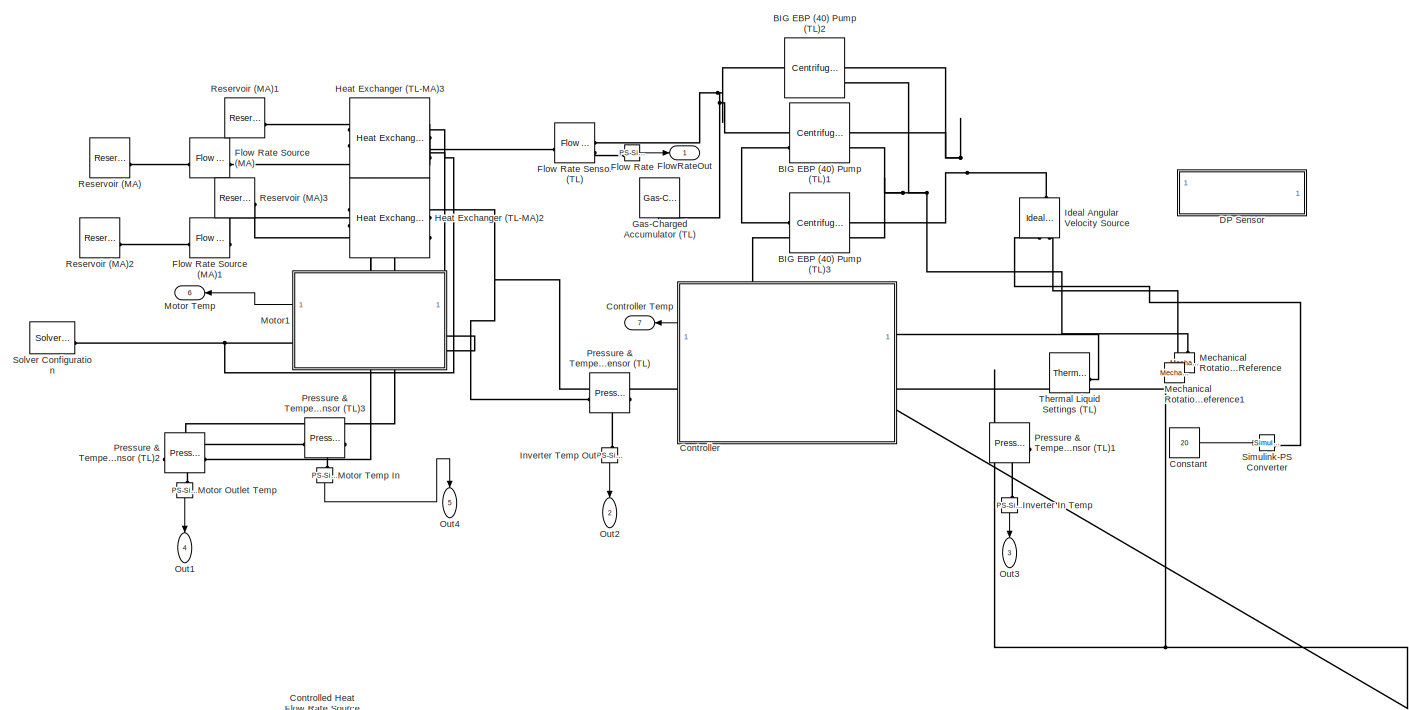
[diagram: root canvas - part 1/3, full width, middle band]
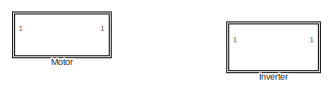
[diagram: root canvas - part 2/3, middle left region]
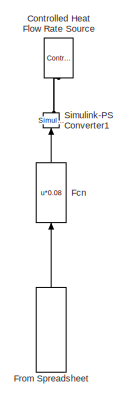
[diagram: root canvas - part 3/3, bottom center region]
MODEL slx_bb8e99e7fb2f
KIND model
CONFIG AbsTol = auto
CONFIG EnableMultiTasking = off
CONFIG FixedStep = auto
CONFIG MaxStep = auto
CONFIG MinStep = auto
CONFIG RelTol = 1e-3
CONFIG SampleTimeConstraint = Unconstrained
CONFIG SolverName = VariableStepAuto
CONFIG StartTime = 0.0
CONFIG StopTime = 2000
BLOCK [Reference] BIG EBP (40) Pump (TL)1  REF=SimscapeFluids_lib/Thermal Liquid/Pumps & Motors/Centrifugal Pump
(TL)
  SourceBlock = SimscapeFluids_lib/Thermal Liquid/Pumps & Motors/Centrifugal Pump\n(TL)
  SourceType = Centrifugal Pump\n(TL)
BLOCK [Reference] BIG EBP (40) Pump (TL)2  REF=SimscapeFluids_lib/Thermal Liquid/Pumps & Motors/Centrifugal Pump
(TL)
  Commented = on
  NameLocation = top
  SourceBlock = SimscapeFluids_lib/Thermal Liquid/Pumps & Motors/Centrifugal Pump\n(TL)
  SourceType = Centrifugal Pump\n(TL)
BLOCK [Reference] BIG EBP (40) Pump (TL)3  REF=SimscapeFluids_lib/Thermal Liquid/Pumps & Motors/Centrifugal Pump
(TL)
  SourceBlock = SimscapeFluids_lib/Thermal Liquid/Pumps & Motors/Centrifugal Pump\n(TL)
  SourceType = Centrifugal Pump\n(TL)
BLOCK [Constant] Constant
  Value = 20
BLOCK [Reference] Controlled Heat Flow Rate Source  REF=fl_lib/Thermal/Thermal Sources/Controlled Heat Flow
Rate Source
  Commented = on
  NameLocation = right
  SourceBlock = fl_lib/Thermal/Thermal Sources/Controlled Heat Flow\nRate Source
  SourceType = Controlled Heat Flow\nRate Source
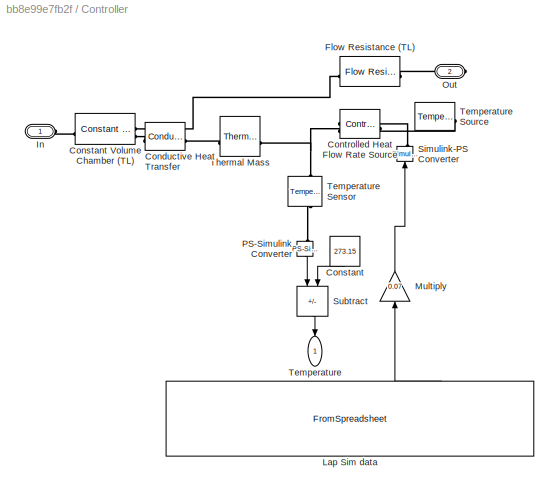
BLOCK [SubSystem] Controller
BLOCK [Outport] Controller Temp
  Port = 7
BLOCK [Reference] Controller/Conductive Heat Transfer  REF=fl_lib/Thermal/Thermal Elements/Conductive Heat
Transfer
  SourceBlock = fl_lib/Thermal/Thermal Elements/Conductive Heat\nTransfer
  SourceType = Conductive Heat\nTransfer
BLOCK [Constant] Controller/Constant
  NameLocation = left
  Value = 273.15
BLOCK [Reference] Controller/Constant Volume Chamber (TL)  REF=fl_lib/Thermal Liquid/Elements/Constant Volume
Chamber (TL)
  SourceBlock = fl_lib/Thermal Liquid/Elements/Constant Volume\nChamber (TL)
  SourceType = Constant Volume\nChamber (TL)
BLOCK [Reference] Controller/Controlled Heat Flow Rate Source  REF=fl_lib/Thermal/Thermal Sources/Controlled Heat Flow
Rate Source
  NameLocation = top
  SourceBlock = fl_lib/Thermal/Thermal Sources/Controlled Heat Flow\nRate Source
  SourceType = Controlled Heat Flow\nRate Source
BLOCK [Reference] Controller/Flow Resistance (TL)  REF=fl_lib/Thermal Liquid/Elements/Flow Resistance (TL)
  SourceBlock = fl_lib/Thermal Liquid/Elements/Flow Resistance (TL)
  SourceType = Flow Resistance (TL)
BLOCK [PMIOPort] Controller/In
  Side = Left
BLOCK [FromSpreadsheet] Controller/Lap Sim data
  FileName = LapTime_Power_new__10.xlsx
  NameLocation = right
  SampleTime = 0.1
  SheetName = LapTime_Power_new__10
BLOCK [Gain] Controller/Multiply
  Gain = 0.07
  NameLocation = right
BLOCK [PMIOPort] Controller/Out
  Port = 2
  Side = Right
BLOCK [Reference] Controller/PS-Simulink Converter  REF=nesl_utility/PS-Simulink
Converter
  NameLocation = left
  SourceBlock = nesl_utility/PS-Simulink\nConverter
  SourceType = PS-Simulink\nConverter
BLOCK [Reference] Controller/Simulink-PS Converter  REF=nesl_utility/Simulink-PS
Converter
  NameLocation = right
  SourceBlock = nesl_utility/Simulink-PS\nConverter
  SourceType = Simulink-PS\nConverter
BLOCK [Sum] Controller/Subtract
  IconShape = rectangular
  Inputs = +-
  NameLocation = left
BLOCK [Outport] Controller/Temperature
  NameLocation = left
BLOCK [Reference] Controller/Temperature Sensor  REF=fl_lib/Thermal/Thermal Sensors/Temperature Sensor
  NameLocation = left
  SourceBlock = fl_lib/Thermal/Thermal Sensors/Temperature Sensor
  SourceType = Temperature Sensor
BLOCK [Reference] Controller/Temperature Source  REF=fl_lib/Thermal/Thermal Sources/Temperature Source
  NameLocation = top
  SourceBlock = fl_lib/Thermal/Thermal Sources/Temperature Source
  SourceType = Temperature Source
BLOCK [Reference] Controller/Thermal Mass  REF=fl_lib/Thermal/Thermal Elements/Thermal Mass
  SourceBlock = fl_lib/Thermal/Thermal Elements/Thermal Mass
  SourceType = Thermal Mass
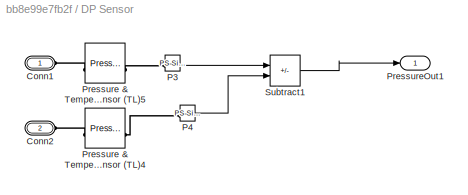
BLOCK [SubSystem] DP Sensor
  Commented = on
BLOCK [PMIOPort] DP Sensor/Conn1
  Side = Left
BLOCK [PMIOPort] DP Sensor/Conn2
  Port = 2
  Side = Left
BLOCK [Reference] DP Sensor/P3  REF=nesl_utility/PS-Simulink
Converter
  SourceBlock = nesl_utility/PS-Simulink\nConverter
  SourceType = PS-Simulink\nConverter
BLOCK [Reference] DP Sensor/P4  REF=nesl_utility/PS-Simulink
Converter
  SourceBlock = nesl_utility/PS-Simulink\nConverter
  SourceType = PS-Simulink\nConverter
BLOCK [Reference] DP Sensor/Pressure & Temperature Sensor (TL)4  REF=fl_lib/Thermal Liquid/Sensors/Pressure &
Temperature Sensor
(TL)
  SourceBlock = fl_lib/Thermal Liquid/Sensors/Pressure &\nTemperature Sensor\n(TL)
  SourceType = Pressure &\nTemperature Sensor\n(TL)
BLOCK [Reference] DP Sensor/Pressure & Temperature Sensor (TL)5  REF=fl_lib/Thermal Liquid/Sensors/Pressure &
Temperature Sensor
(TL)
  SourceBlock = fl_lib/Thermal Liquid/Sensors/Pressure &\nTemperature Sensor\n(TL)
  SourceType = Pressure &\nTemperature Sensor\n(TL)
BLOCK [Outport] DP Sensor/PressureOut1
BLOCK [Sum] DP Sensor/Subtract1
  IconShape = rectangular
  Inputs = -+
BLOCK [Fcn] Fcn
  Commented = on
  Expr = u*0.08
  NameLocation = right
BLOCK [Reference] Flow Rate  REF=nesl_utility/PS-Simulink
Converter
  SourceBlock = nesl_utility/PS-Simulink\nConverter
  SourceType = PS-Simulink\nConverter
BLOCK [Reference] Flow Rate Sensor (TL)  REF=fl_lib/Thermal Liquid/Sensors/Flow Rate Sensor
(TL)
  SourceBlock = fl_lib/Thermal Liquid/Sensors/Flow Rate Sensor\n(TL)
  SourceType = Flow Rate Sensor\n(TL)
BLOCK [Reference] Flow Rate Source (MA)  REF=fl_lib/Moist Air/Sources/Flow Rate Source
(MA)
  SourceBlock = fl_lib/Moist Air/Sources/Flow Rate Source\n(MA)
  SourceType = Flow Rate Source\n(MA)
BLOCK [Reference] Flow Rate Source (MA)1  REF=fl_lib/Moist Air/Sources/Flow Rate Source
(MA)
  SourceBlock = fl_lib/Moist Air/Sources/Flow Rate Source\n(MA)
  SourceType = Flow Rate Source\n(MA)
BLOCK [Outport] FlowRateOut
BLOCK [FromSpreadsheet] From Spreadsheet
  Commented = on
  FileName = LapTime_Power_old.xlsx
  NameLocation = right
  SampleTime = 0.1
BLOCK [Reference] Gas-Charged Accumulator (TL)  REF=SimscapeFluids_lib/Thermal Liquid/Tanks & Accumulators/Gas-Charged
Accumulator (TL)
  NameLocation = right
  SourceBlock = SimscapeFluids_lib/Thermal Liquid/Tanks & Accumulators/Gas-Charged\nAccumulator (TL)
  SourceType = Gas-Charged\nAccumulator (TL)
BLOCK [Reference] Heat Exchanger (TL-MA)2  REF=SimscapeFluids_lib/Heat Exchangers/Thermal Liquid -
Moist Air/Heat Exchanger
(TL-MA)
  NameLocation = top
  SourceBlock = SimscapeFluids_lib/Heat Exchangers/Thermal Liquid -\nMoist Air/Heat Exchanger\n(TL-MA)
  SourceType = Heat Exchanger\n(TL-MA)
BLOCK [Reference] Heat Exchanger (TL-MA)3  REF=SimscapeFluids_lib/Heat Exchangers/Thermal Liquid -
Moist Air/Heat Exchanger
(TL-MA)
  NameLocation = top
  SourceBlock = SimscapeFluids_lib/Heat Exchangers/Thermal Liquid -\nMoist Air/Heat Exchanger\n(TL-MA)
  SourceType = Heat Exchanger\n(TL-MA)
BLOCK [Reference] Ideal Angular Velocity Source  REF=fl_lib/Mechanical/Mechanical Sources/Ideal Angular
Velocity Source
  NameLocation = right
  SourceBlock = fl_lib/Mechanical/Mechanical Sources/Ideal Angular\nVelocity Source
  SourceType = Ideal Angular\nVelocity Source
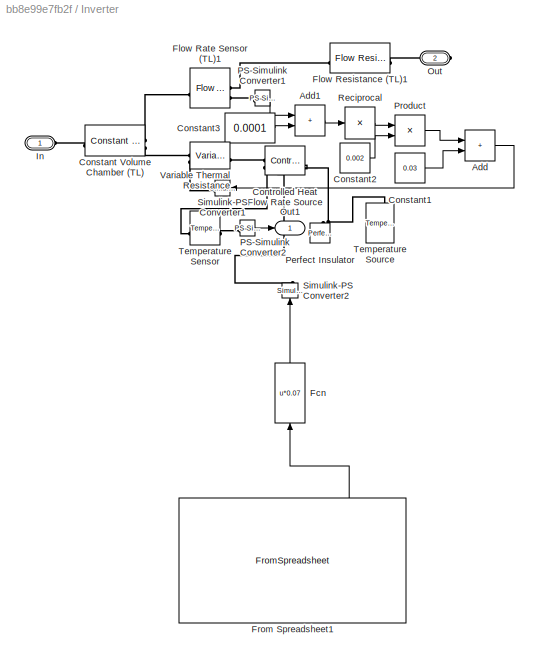
BLOCK [SubSystem] Inverter
  Commented = on
  NameLocation = top
BLOCK [Reference] Inverter In Temp  REF=nesl_utility/PS-Simulink
Converter
  NameLocation = left
  SourceBlock = nesl_utility/PS-Simulink\nConverter
  SourceType = PS-Simulink\nConverter
BLOCK [Reference] Inverter Temp Out  REF=nesl_utility/PS-Simulink
Converter
  NameLocation = left
  SourceBlock = nesl_utility/PS-Simulink\nConverter
  SourceType = PS-Simulink\nConverter
BLOCK [Sum] Inverter/Add
  IconShape = rectangular
BLOCK [Sum] Inverter/Add1
  IconShape = rectangular
BLOCK [Reference] Inverter/Constant Volume Chamber (TL)  REF=fl_lib/Thermal Liquid/Elements/Constant Volume
Chamber (TL)
  SourceBlock = fl_lib/Thermal Liquid/Elements/Constant Volume\nChamber (TL)
  SourceType = Constant Volume\nChamber (TL)
BLOCK [Constant] Inverter/Constant1
  Value = 0.03
BLOCK [Constant] Inverter/Constant2
  Value = 0.002
BLOCK [Constant] Inverter/Constant3
  Value = 0.0001
BLOCK [Reference] Inverter/Controlled Heat Flow Rate Source  REF=fl_lib/Thermal/Thermal Sources/Controlled Heat Flow
Rate Source
  NameLocation = top
  SourceBlock = fl_lib/Thermal/Thermal Sources/Controlled Heat Flow\nRate Source
  SourceType = Controlled Heat Flow\nRate Source
BLOCK [Fcn] Inverter/Fcn
  Expr = u*0.07
  NameLocation = right
BLOCK [Reference] Inverter/Flow Rate Sensor (TL)1  REF=fl_lib/Thermal Liquid/Sensors/Flow Rate Sensor
(TL)
  SourceBlock = fl_lib/Thermal Liquid/Sensors/Flow Rate Sensor\n(TL)
  SourceType = Flow Rate Sensor\n(TL)
BLOCK [Reference] Inverter/Flow Resistance (TL)1  REF=fl_lib/Thermal Liquid/Elements/Flow Resistance (TL)
  SourceBlock = fl_lib/Thermal Liquid/Elements/Flow Resistance (TL)
  SourceType = Flow Resistance (TL)
BLOCK [FromSpreadsheet] Inverter/From Spreadsheet1
  FileName = <path>
  NameLocation = right
  SampleTime = 0.1
  SheetName = LapTime_Power_new__10
BLOCK [PMIOPort] Inverter/In
  Side = Left
BLOCK [PMIOPort] Inverter/Out
  Port = 2
  Side = Right
BLOCK [Outport] Inverter/Out1
BLOCK [Reference] Inverter/PS-Simulink Converter1  REF=nesl_utility/PS-Simulink
Converter
  SourceBlock = nesl_utility/PS-Simulink\nConverter
  SourceType = PS-Simulink\nConverter
BLOCK [Reference] Inverter/PS-Simulink Converter2  REF=nesl_utility/PS-Simulink
Converter
  SourceBlock = nesl_utility/PS-Simulink\nConverter
  SourceType = PS-Simulink\nConverter
BLOCK [Reference] Inverter/Perfect Insulator  REF=fl_lib/Thermal/Thermal Elements/Perfect Insulator
  NameLocation = right
  SourceBlock = fl_lib/Thermal/Thermal Elements/Perfect Insulator
  SourceType = Perfect Insulator
BLOCK [Product] Inverter/Product
BLOCK [Product] Inverter/Reciprocal
  Inputs = /
  OutMax = 1000
  OutMin = 0
BLOCK [Reference] Inverter/Simulink-PS Converter1  REF=nesl_utility/Simulink-PS
Converter
  NameLocation = top
  SourceBlock = nesl_utility/Simulink-PS\nConverter
  SourceType = Simulink-PS\nConverter
BLOCK [Reference] Inverter/Simulink-PS Converter2  REF=nesl_utility/Simulink-PS
Converter
  NameLocation = right
  SourceBlock = nesl_utility/Simulink-PS\nConverter
  SourceType = Simulink-PS\nConverter
BLOCK [Reference] Inverter/Temperature Sensor  REF=fl_lib/Thermal/Thermal Sensors/Temperature Sensor
  SourceBlock = fl_lib/Thermal/Thermal Sensors/Temperature Sensor
  SourceType = Temperature Sensor
BLOCK [Reference] Inverter/Temperature Source  REF=fl_lib/Thermal/Thermal Sources/Temperature Source
  NameLocation = right
  SourceBlock = fl_lib/Thermal/Thermal Sources/Temperature Source
  SourceType = Temperature Source
BLOCK [Reference] Inverter/Variable Thermal Resistance  REF=fl_lib/Thermal/Thermal Elements/Variable Thermal
Resistance
  SourceBlock = fl_lib/Thermal/Thermal Elements/Variable Thermal\nResistance
  SourceType = Variable Thermal\nResistance
BLOCK [Reference] Mechanical Rotational Reference  REF=fl_lib/Mechanical/Rotational Elements/Mechanical
Rotational Reference
  NameLocation = right
  SourceBlock = fl_lib/Mechanical/Rotational Elements/Mechanical\nRotational Reference
  SourceType = Mechanical\nRotational Reference
BLOCK [Reference] Mechanical Rotational Reference1  REF=fl_lib/Mechanical/Rotational Elements/Mechanical
Rotational Reference
  NameLocation = right
  SourceBlock = fl_lib/Mechanical/Rotational Elements/Mechanical\nRotational Reference
  SourceType = Mechanical\nRotational Reference
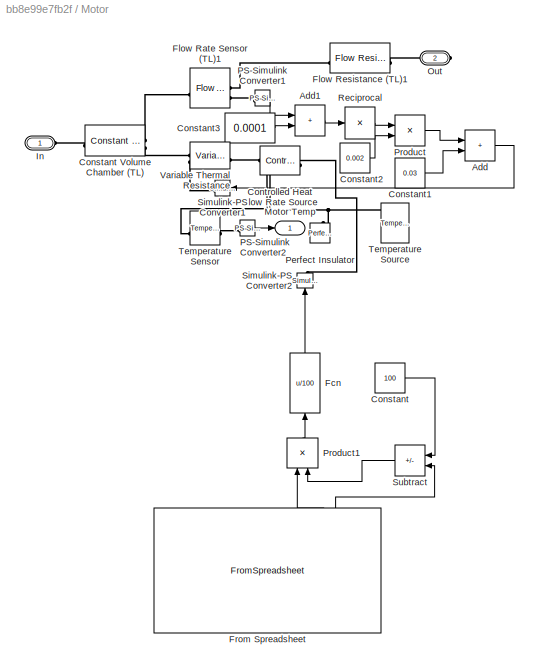
BLOCK [SubSystem] Motor
  Commented = on
  NameLocation = top
BLOCK [Reference] Motor Outlet Temp  REF=nesl_utility/PS-Simulink
Converter
  NameLocation = left
  SourceBlock = nesl_utility/PS-Simulink\nConverter
  SourceType = PS-Simulink\nConverter
BLOCK [Outport] Motor Temp
  Port = 6
BLOCK [Reference] Motor Temp In  REF=nesl_utility/PS-Simulink
Converter
  NameLocation = left
  SourceBlock = nesl_utility/PS-Simulink\nConverter
  SourceType = PS-Simulink\nConverter
BLOCK [Sum] Motor/Add
  IconShape = rectangular
BLOCK [Sum] Motor/Add1
  IconShape = rectangular
BLOCK [Constant] Motor/Constant
  Value = 100
BLOCK [Reference] Motor/Constant Volume Chamber (TL)  REF=fl_lib/Thermal Liquid/Elements/Constant Volume
Chamber (TL)
  SourceBlock = fl_lib/Thermal Liquid/Elements/Constant Volume\nChamber (TL)
  SourceType = Constant Volume\nChamber (TL)
BLOCK [Constant] Motor/Constant1
  Value = 0.03
BLOCK [Constant] Motor/Constant2
  Value = 0.002
BLOCK [Constant] Motor/Constant3
  Value = 0.0001
BLOCK [Reference] Motor/Controlled Heat Flow Rate Source  REF=fl_lib/Thermal/Thermal Sources/Controlled Heat Flow
Rate Source
  NameLocation = top
  SourceBlock = fl_lib/Thermal/Thermal Sources/Controlled Heat Flow\nRate Source
  SourceType = Controlled Heat Flow\nRate Source
BLOCK [Fcn] Motor/Fcn
  Expr = u/100
  NameLocation = right
BLOCK [Reference] Motor/Flow Rate Sensor (TL)1  REF=fl_lib/Thermal Liquid/Sensors/Flow Rate Sensor
(TL)
  SourceBlock = fl_lib/Thermal Liquid/Sensors/Flow Rate Sensor\n(TL)
  SourceType = Flow Rate Sensor\n(TL)
BLOCK [Reference] Motor/Flow Resistance (TL)1  REF=fl_lib/Thermal Liquid/Elements/Flow Resistance (TL)
  SourceBlock = fl_lib/Thermal Liquid/Elements/Flow Resistance (TL)
  SourceType = Flow Resistance (TL)
BLOCK [FromSpreadsheet] Motor/From Spreadsheet
  FileName = <path>
  NameLocation = right
  SampleTime = 0.1
  SheetName = LapTime_Power_new__10
BLOCK [PMIOPort] Motor/In
  Side = Left
BLOCK [Outport] Motor/Motor Temp
BLOCK [PMIOPort] Motor/Out
  Port = 2
  Side = Right
BLOCK [Reference] Motor/PS-Simulink Converter1  REF=nesl_utility/PS-Simulink
Converter
  SourceBlock = nesl_utility/PS-Simulink\nConverter
  SourceType = PS-Simulink\nConverter
BLOCK [Reference] Motor/PS-Simulink Converter2  REF=nesl_utility/PS-Simulink
Converter
  SourceBlock = nesl_utility/PS-Simulink\nConverter
  SourceType = PS-Simulink\nConverter
BLOCK [Reference] Motor/Perfect Insulator  REF=fl_lib/Thermal/Thermal Elements/Perfect Insulator
  NameLocation = right
  SourceBlock = fl_lib/Thermal/Thermal Elements/Perfect Insulator
  SourceType = Perfect Insulator
BLOCK [Product] Motor/Product
BLOCK [Product] Motor/Product1
  NameLocation = right
BLOCK [Product] Motor/Reciprocal
  Inputs = /
  OutMax = 1000
  OutMin = 0
BLOCK [Reference] Motor/Simulink-PS Converter1  REF=nesl_utility/Simulink-PS
Converter
  NameLocation = top
  SourceBlock = nesl_utility/Simulink-PS\nConverter
  SourceType = Simulink-PS\nConverter
BLOCK [Reference] Motor/Simulink-PS Converter2  REF=nesl_utility/Simulink-PS
Converter
  NameLocation = right
  SourceBlock = nesl_utility/Simulink-PS\nConverter
  SourceType = Simulink-PS\nConverter
BLOCK [Sum] Motor/Subtract
  IconShape = rectangular
  Inputs = +-
  NameLocation = top
BLOCK [Reference] Motor/Temperature Sensor  REF=fl_lib/Thermal/Thermal Sensors/Temperature Sensor
  SourceBlock = fl_lib/Thermal/Thermal Sensors/Temperature Sensor
  SourceType = Temperature Sensor
BLOCK [Reference] Motor/Temperature Source  REF=fl_lib/Thermal/Thermal Sources/Temperature Source
  NameLocation = right
  SourceBlock = fl_lib/Thermal/Thermal Sources/Temperature Source
  SourceType = Temperature Source
BLOCK [Reference] Motor/Variable Thermal Resistance  REF=fl_lib/Thermal/Thermal Elements/Variable Thermal
Resistance
  SourceBlock = fl_lib/Thermal/Thermal Elements/Variable Thermal\nResistance
  SourceType = Variable Thermal\nResistance
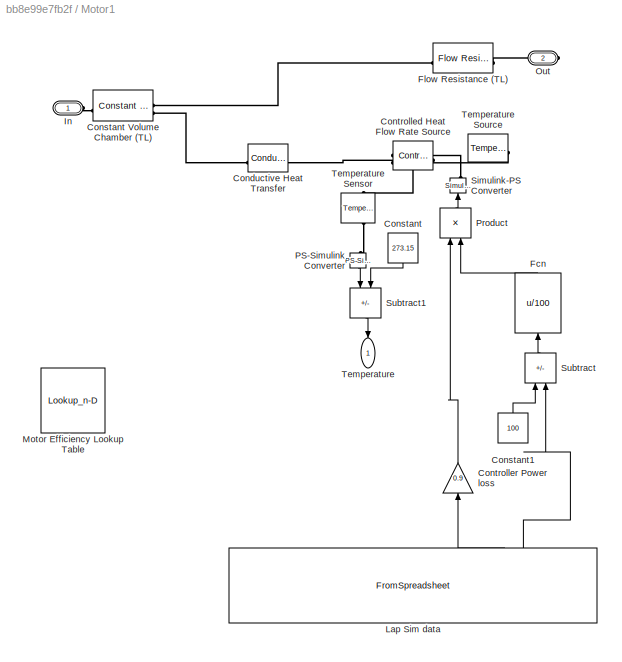
BLOCK [SubSystem] Motor1
BLOCK [Reference] Motor1/Conductive Heat Transfer  REF=fl_lib/Thermal/Thermal Elements/Conductive Heat
Transfer
  SourceBlock = fl_lib/Thermal/Thermal Elements/Conductive Heat\nTransfer
  SourceType = Conductive Heat\nTransfer
BLOCK [Constant] Motor1/Constant
  NameLocation = left
  Value = 273.15
BLOCK [Reference] Motor1/Constant Volume Chamber (TL)  REF=fl_lib/Thermal Liquid/Elements/Constant Volume
Chamber (TL)
  SourceBlock = fl_lib/Thermal Liquid/Elements/Constant Volume\nChamber (TL)
  SourceType = Constant Volume\nChamber (TL)
BLOCK [Constant] Motor1/Constant1
  NameLocation = right
  Value = 100
BLOCK [Reference] Motor1/Controlled Heat Flow Rate Source  REF=fl_lib/Thermal/Thermal Sources/Controlled Heat Flow
Rate Source
  NameLocation = top
  SourceBlock = fl_lib/Thermal/Thermal Sources/Controlled Heat Flow\nRate Source
  SourceType = Controlled Heat Flow\nRate Source
BLOCK [Gain] Motor1/Controller Power loss
  Gain = 0.9
  NameLocation = right
BLOCK [Fcn] Motor1/Fcn
  Expr = u/100
  NameLocation = right
BLOCK [Reference] Motor1/Flow Resistance (TL)  REF=fl_lib/Thermal Liquid/Elements/Flow Resistance (TL)
  SourceBlock = fl_lib/Thermal Liquid/Elements/Flow Resistance (TL)
  SourceType = Flow Resistance (TL)
BLOCK [PMIOPort] Motor1/In
  Side = Left
BLOCK [FromSpreadsheet] Motor1/Lap Sim data
  FileName = LapTime_Power_new__10.xlsx
  NameLocation = right
  SampleTime = 0.1
  SheetName = LapTime_Power_new__10
BLOCK [Lookup_n-D] Motor1/Motor Efficiency Lookup Table
  BreakpointsForDimension1 = speed
  BreakpointsForDimension2 = torque
  Commented = on
  InputPortMap = u0,u1
  InternalRulePriority = Speed
  NameLocation = right
  RndMeth = Simplest
  Table = efficiencyGrid
BLOCK [PMIOPort] Motor1/Out
  Port = 2
  Side = Right
BLOCK [Reference] Motor1/PS-Simulink Converter  REF=nesl_utility/PS-Simulink
Converter
  NameLocation = left
  SourceBlock = nesl_utility/PS-Simulink\nConverter
  SourceType = PS-Simulink\nConverter
BLOCK [Product] Motor1/Product
  NameLocation = right
BLOCK [Reference] Motor1/Simulink-PS Converter  REF=nesl_utility/Simulink-PS
Converter
  NameLocation = right
  SourceBlock = nesl_utility/Simulink-PS\nConverter
  SourceType = Simulink-PS\nConverter
BLOCK [Sum] Motor1/Subtract
  IconShape = rectangular
  Inputs = +-
  NameLocation = right
BLOCK [Sum] Motor1/Subtract1
  IconShape = rectangular
  Inputs = +-
  NameLocation = left
BLOCK [Outport] Motor1/Temperature
  NameLocation = left
BLOCK [Reference] Motor1/Temperature Sensor  REF=fl_lib/Thermal/Thermal Sensors/Temperature Sensor
  NameLocation = left
  SourceBlock = fl_lib/Thermal/Thermal Sensors/Temperature Sensor
  SourceType = Temperature Sensor
BLOCK [Reference] Motor1/Temperature Source  REF=fl_lib/Thermal/Thermal Sources/Temperature Source
  NameLocation = top
  SourceBlock = fl_lib/Thermal/Thermal Sources/Temperature Source
  SourceType = Temperature Source
BLOCK [Outport] Out1
  NameLocation = left
  Port = 4
  SignalName = Temp Motor Out
BLOCK [Outport] Out2
  NameLocation = left
  Port = 2
  SignalName = Temp Inverter Out
BLOCK [Outport] Out3
  NameLocation = left
  Port = 3
  SignalName = Temp Inverter In
BLOCK [Outport] Out4
  NameLocation = left
  Port = 5
  SignalName = Temp Motor In
BLOCK [Reference] Pressure & Temperature Sensor (TL)  REF=fl_lib/Thermal Liquid/Sensors/Pressure &
Temperature Sensor
(TL)
  SourceBlock = fl_lib/Thermal Liquid/Sensors/Pressure &\nTemperature Sensor\n(TL)
  SourceType = Pressure &\nTemperature Sensor\n(TL)
BLOCK [Reference] Pressure & Temperature Sensor (TL)1  REF=fl_lib/Thermal Liquid/Sensors/Pressure &
Temperature Sensor
(TL)
  SourceBlock = fl_lib/Thermal Liquid/Sensors/Pressure &\nTemperature Sensor\n(TL)
  SourceType = Pressure &\nTemperature Sensor\n(TL)
BLOCK [Reference] Pressure & Temperature Sensor (TL)2  REF=fl_lib/Thermal Liquid/Sensors/Pressure &
Temperature Sensor
(TL)
  SourceBlock = fl_lib/Thermal Liquid/Sensors/Pressure &\nTemperature Sensor\n(TL)
  SourceType = Pressure &\nTemperature Sensor\n(TL)
BLOCK [Reference] Pressure & Temperature Sensor (TL)3  REF=fl_lib/Thermal Liquid/Sensors/Pressure &
Temperature Sensor
(TL)
  SourceBlock = fl_lib/Thermal Liquid/Sensors/Pressure &\nTemperature Sensor\n(TL)
  SourceType = Pressure &\nTemperature Sensor\n(TL)
BLOCK [Reference] Reservoir (MA)  REF=fl_lib/Moist Air/Elements/Reservoir (MA)
  SourceBlock = fl_lib/Moist Air/Elements/Reservoir (MA)
  SourceType = Reservoir (MA)
BLOCK [Reference] Reservoir (MA)1  REF=fl_lib/Moist Air/Elements/Reservoir (MA)
  SourceBlock = fl_lib/Moist Air/Elements/Reservoir (MA)
  SourceType = Reservoir (MA)
BLOCK [Reference] Reservoir (MA)2  REF=fl_lib/Moist Air/Elements/Reservoir (MA)
  SourceBlock = fl_lib/Moist Air/Elements/Reservoir (MA)
  SourceType = Reservoir (MA)
BLOCK [Reference] Reservoir (MA)3  REF=fl_lib/Moist Air/Elements/Reservoir (MA)
  SourceBlock = fl_lib/Moist Air/Elements/Reservoir (MA)
  SourceType = Reservoir (MA)
BLOCK [Reference] Simulink-PS Converter  REF=nesl_utility/Simulink-PS
Converter
  SourceBlock = nesl_utility/Simulink-PS\nConverter
  SourceType = Simulink-PS\nConverter
BLOCK [Reference] Simulink-PS Converter1  REF=nesl_utility/Simulink-PS
Converter
  Commented = on
  NameLocation = right
  SourceBlock = nesl_utility/Simulink-PS\nConverter
  SourceType = Simulink-PS\nConverter
BLOCK [Reference] Solver Configuration  REF=nesl_utility/Solver
Configuration
  SourceBlock = nesl_utility/Solver\nConfiguration
  SourceType = Solver\nConfiguration
BLOCK [Reference] Thermal Liquid Settings (TL)  REF=fl_lib/Thermal Liquid/Utilities/Thermal Liquid
Settings (TL)
  SourceBlock = fl_lib/Thermal Liquid/Utilities/Thermal Liquid\nSettings (TL)
  SourceType = Thermal Liquid\nSettings (TL)
LINE Constant:1 -> Simulink-PS Converter:1
LINE Controller/Constant:1 -> Controller/Subtract:2
LINE Controller/Lap Sim data:3 -> Controller/Multiply:1
LINE Controller/Multiply:1 -> Controller/Simulink-PS Converter:1
LINE Controller/PS-Simulink Converter:1 -> Controller/Subtract:1
LINE Controller/Subtract:1 -> Controller/Temperature:1
LINE Controller:1 -> Controller Temp:1
LINE DP Sensor/P3:1 -> DP Sensor/Subtract1:1
LINE DP Sensor/P4:1 -> DP Sensor/Subtract1:2
LINE DP Sensor/Subtract1:1 -> DP Sensor/PressureOut1:1
LINE Fcn:1 -> Simulink-PS Converter1:1
LINE Flow Rate:1 -> FlowRateOut:1
LINE From Spreadsheet:1 -> Fcn:1
LINE Inverter In Temp:1 -> Out3:1
LINE Inverter Temp Out:1 -> Out2:1
LINE Inverter/Add1:1 -> Inverter/Reciprocal:1
LINE Inverter/Add:1 -> Inverter/Simulink-PS Converter1:1
LINE Inverter/Constant1:1 -> Inverter/Add:2
LINE Inverter/Constant2:1 -> Inverter/Product:2
LINE Inverter/Constant3:1 -> Inverter/Add1:2
LINE Inverter/Fcn:1 -> Inverter/Simulink-PS Converter2:1
LINE Inverter/From Spreadsheet1:3 -> Inverter/Fcn:1
LINE Inverter/PS-Simulink Converter1:1 -> Inverter/Add1:1
LINE Inverter/PS-Simulink Converter2:1 -> Inverter/Out1:1
LINE Inverter/Product:1 -> Inverter/Add:1
LINE Inverter/Reciprocal:1 -> Inverter/Product:1
LINE Motor Outlet Temp:1 -> Out1:1
LINE Motor Temp In:1 -> Out4:1
LINE Motor/Add1:1 -> Motor/Reciprocal:1
LINE Motor/Add:1 -> Motor/Simulink-PS Converter1:1
LINE Motor/Constant1:1 -> Motor/Add:2
LINE Motor/Constant2:1 -> Motor/Product:2
LINE Motor/Constant3:1 -> Motor/Add1:2
LINE Motor/Constant:1 -> Motor/Subtract:1
LINE Motor/Fcn:1 -> Motor/Simulink-PS Converter2:1
LINE Motor/From Spreadsheet:3 -> Motor/Product1:1
LINE Motor/From Spreadsheet:4 -> Motor/Subtract:2
LINE Motor/PS-Simulink Converter1:1 -> Motor/Add1:1
LINE Motor/PS-Simulink Converter2:1 -> Motor/Motor Temp:1
LINE Motor/Product1:1 -> Motor/Fcn:1
LINE Motor/Product:1 -> Motor/Add:1
LINE Motor/Reciprocal:1 -> Motor/Product:1
LINE Motor/Subtract:1 -> Motor/Product1:2
LINE Motor1/Constant1:1 -> Motor1/Subtract:1
LINE Motor1/Constant:1 -> Motor1/Subtract1:2
LINE Motor1/Controller Power loss:1 -> Motor1/Product:1
LINE Motor1/Fcn:1 -> Motor1/Product:2
LINE Motor1/Lap Sim data:3 -> Motor1/Controller Power loss:1
LINE Motor1/Lap Sim data:4 -> Motor1/Subtract:2
LINE Motor1/PS-Simulink Converter:1 -> Motor1/Subtract1:1
LINE Motor1/Product:1 -> Motor1/Simulink-PS Converter:1
LINE Motor1/Subtract1:1 -> Motor1/Temperature:1
LINE Motor1/Subtract:1 -> Motor1/Fcn:1
LINE Motor1:1 -> Motor Temp:1
PNET net1: BIG EBP (40) Pump (TL)1:LConn1 -- BIG EBP (40) Pump (TL)2:LConn1 -- Flow Rate Sensor (TL):RConn1 -- Gas-Charged Accumulator (TL):RConn1
PLINE BIG EBP (40) Pump (TL)1:LConn2 -- BIG EBP (40) Pump (TL)3:LConn1
PNET net2: BIG EBP (40) Pump (TL)1:RConn1 -- BIG EBP (40) Pump (TL)2:RConn1 -- BIG EBP (40) Pump (TL)3:RConn1 -- Ideal Angular Velocity Source:LConn1
PNET net3: BIG EBP (40) Pump (TL)1:RConn2 -- BIG EBP (40) Pump (TL)2:RConn2 -- BIG EBP (40) Pump (TL)3:RConn2 -- Mechanical Rotational Reference:LConn1
PNET net4: BIG EBP (40) Pump (TL)3:LConn2 -- Controller:LConn1 -- Pressure & Temperature Sensor (TL)1:LConn1 -- Thermal Liquid Settings (TL):RConn1
PLINE Controlled Heat Flow Rate Source:RConn1 -- Simulink-PS Converter1:RConn1
PLINE Controller/Conductive Heat Transfer:LConn1 -- Controller/Thermal Mass:RConn1
PLINE Controller/Conductive Heat Transfer:RConn1 -- Controller/Constant Volume Chamber (TL):LConn2
PLINE Controller/Constant Volume Chamber (TL):LConn1 -- Controller/Flow Resistance (TL):LConn1
PLINE Controller/Constant Volume Chamber (TL):RConn1 -- Controller/In:RConn1
PNET net5: Controller/Controlled Heat Flow Rate Source:LConn1 -- Controller/Temperature Sensor:LConn1 -- Controller/Thermal Mass:LConn1
PLINE Controller/Controlled Heat Flow Rate Source:RConn1 -- Controller/Simulink-PS Converter:RConn1
PLINE Controller/Controlled Heat Flow Rate Source:RConn2 -- Controller/Temperature Source:LConn1
PLINE Controller/Flow Resistance (TL):RConn1 -- Controller/Out:RConn1
PLINE Controller/PS-Simulink Converter:LConn1 -- Controller/Temperature Sensor:RConn1
PNET net6: Controller:RConn1 -- Heat Exchanger (TL-MA)2:LConn1 -- Pressure & Temperature Sensor (TL):LConn1
PLINE DP Sensor/Conn1:RConn1 -- DP Sensor/Pressure & Temperature Sensor (TL)5:LConn1
PLINE DP Sensor/Conn2:RConn1 -- DP Sensor/Pressure & Temperature Sensor (TL)4:LConn1
PLINE DP Sensor/P3:LConn1 -- DP Sensor/Pressure & Temperature Sensor (TL)5:RConn1
PLINE DP Sensor/P4:LConn1 -- DP Sensor/Pressure & Temperature Sensor (TL)4:RConn1
PLINE Flow Rate Sensor (TL):LConn1 -- Heat Exchanger (TL-MA)3:LConn2
PLINE Flow Rate Sensor (TL):RConn2 -- Flow Rate:LConn1
PLINE Flow Rate Source (MA)1:LConn1 -- Reservoir (MA)2:LConn1
PLINE Flow Rate Source (MA)1:RConn1 -- Heat Exchanger (TL-MA)2:RConn1
PLINE Flow Rate Source (MA):LConn1 -- Reservoir (MA):LConn1
PLINE Flow Rate Source (MA):RConn1 -- Heat Exchanger (TL-MA)3:RConn1
PNET net7: Heat Exchanger (TL-MA)2:LConn2 -- Motor1:LConn1 -- Pressure & Temperature Sensor (TL)3:LConn1
PLINE Heat Exchanger (TL-MA)2:RConn2 -- Reservoir (MA)3:LConn1
PNET net8: Heat Exchanger (TL-MA)3:LConn1 -- Motor1:RConn1 -- Pressure & Temperature Sensor (TL)2:LConn1 -- Solver Configuration:RConn1
PLINE Heat Exchanger (TL-MA)3:RConn2 -- Reservoir (MA)1:LConn1
PLINE Ideal Angular Velocity Source:RConn1 -- Simulink-PS Converter:RConn1
PLINE Ideal Angular Velocity Source:RConn2 -- Mechanical Rotational Reference1:LConn1
PLINE Inverter In Temp:LConn1 -- Pressure & Temperature Sensor (TL)1:RConn1
PLINE Inverter Temp Out:LConn1 -- Pressure & Temperature Sensor (TL):RConn1
PLINE Inverter/Constant Volume Chamber (TL):LConn1 -- Inverter/Flow Rate Sensor (TL)1:LConn1
PLINE Inverter/Constant Volume Chamber (TL):LConn2 -- Inverter/Variable Thermal Resistance:LConn1
PLINE Inverter/Constant Volume Chamber (TL):RConn1 -- Inverter/In:RConn1
PNET net9: Inverter/Controlled Heat Flow Rate Source:LConn1 -- Inverter/Temperature Sensor:LConn1 -- Inverter/Variable Thermal Resistance:RConn1
PLINE Inverter/Controlled Heat Flow Rate Source:RConn1 -- Inverter/Simulink-PS Converter2:RConn1
PNET net10: Inverter/Controlled Heat Flow Rate Source:RConn2 -- Inverter/Perfect Insulator:LConn1 -- Inverter/Temperature Source:LConn1
PLINE Inverter/Flow Rate Sensor (TL)1:RConn1 -- Inverter/Flow Resistance (TL)1:LConn1
PLINE Inverter/Flow Rate Sensor (TL)1:RConn2 -- Inverter/PS-Simulink Converter1:LConn1
PLINE Inverter/Flow Resistance (TL)1:RConn1 -- Inverter/Out:RConn1
PLINE Inverter/PS-Simulink Converter2:LConn1 -- Inverter/Temperature Sensor:RConn1
PLINE Inverter/Simulink-PS Converter1:RConn1 -- Inverter/Variable Thermal Resistance:LConn2
PLINE Motor Outlet Temp:LConn1 -- Pressure & Temperature Sensor (TL)2:RConn1
PLINE Motor Temp In:LConn1 -- Pressure & Temperature Sensor (TL)3:RConn1
PLINE Motor/Constant Volume Chamber (TL):LConn1 -- Motor/Flow Rate Sensor (TL)1:LConn1
PLINE Motor/Constant Volume Chamber (TL):LConn2 -- Motor/Variable Thermal Resistance:LConn1
PLINE Motor/Constant Volume Chamber (TL):RConn1 -- Motor/In:RConn1
PNET net11: Motor/Controlled Heat Flow Rate Source:LConn1 -- Motor/Temperature Sensor:LConn1 -- Motor/Variable Thermal Resistance:RConn1
PLINE Motor/Controlled Heat Flow Rate Source:RConn1 -- Motor/Simulink-PS Converter2:RConn1
PNET net12: Motor/Controlled Heat Flow Rate Source:RConn2 -- Motor/Perfect Insulator:LConn1 -- Motor/Temperature Source:LConn1
PLINE Motor/Flow Rate Sensor (TL)1:RConn1 -- Motor/Flow Resistance (TL)1:LConn1
PLINE Motor/Flow Rate Sensor (TL)1:RConn2 -- Motor/PS-Simulink Converter1:LConn1
PLINE Motor/Flow Resistance (TL)1:RConn1 -- Motor/Out:RConn1
PLINE Motor/PS-Simulink Converter2:LConn1 -- Motor/Temperature Sensor:RConn1
PLINE Motor/Simulink-PS Converter1:RConn1 -- Motor/Variable Thermal Resistance:LConn2
PNET net13: Motor1/Conductive Heat Transfer:LConn1 -- Motor1/Controlled Heat Flow Rate Source:LConn1 -- Motor1/Temperature Sensor:LConn1
PLINE Motor1/Conductive Heat Transfer:RConn1 -- Motor1/Constant Volume Chamber (TL):LConn2
PLINE Motor1/Constant Volume Chamber (TL):LConn1 -- Motor1/Flow Resistance (TL):LConn1
PLINE Motor1/Constant Volume Chamber (TL):RConn1 -- Motor1/In:RConn1
PLINE Motor1/Controlled Heat Flow Rate Source:RConn1 -- Motor1/Simulink-PS Converter:RConn1
PLINE Motor1/Controlled Heat Flow Rate Source:RConn2 -- Motor1/Temperature Source:LConn1
PLINE Motor1/Flow Resistance (TL):RConn1 -- Motor1/Out:RConn1
PLINE Motor1/PS-Simulink Converter:LConn1 -- Motor1/Temperature Sensor:RConn1
note: PNET lines group multi-terminal physical nets as a canonical sorted terminal list (undirected conserving connections); 2-terminal nets keep the pairwise PLINE form
note: 2 file-system paths scrubbed to <path> (not preserved elsewhere — flat text is the only slx artifact)
